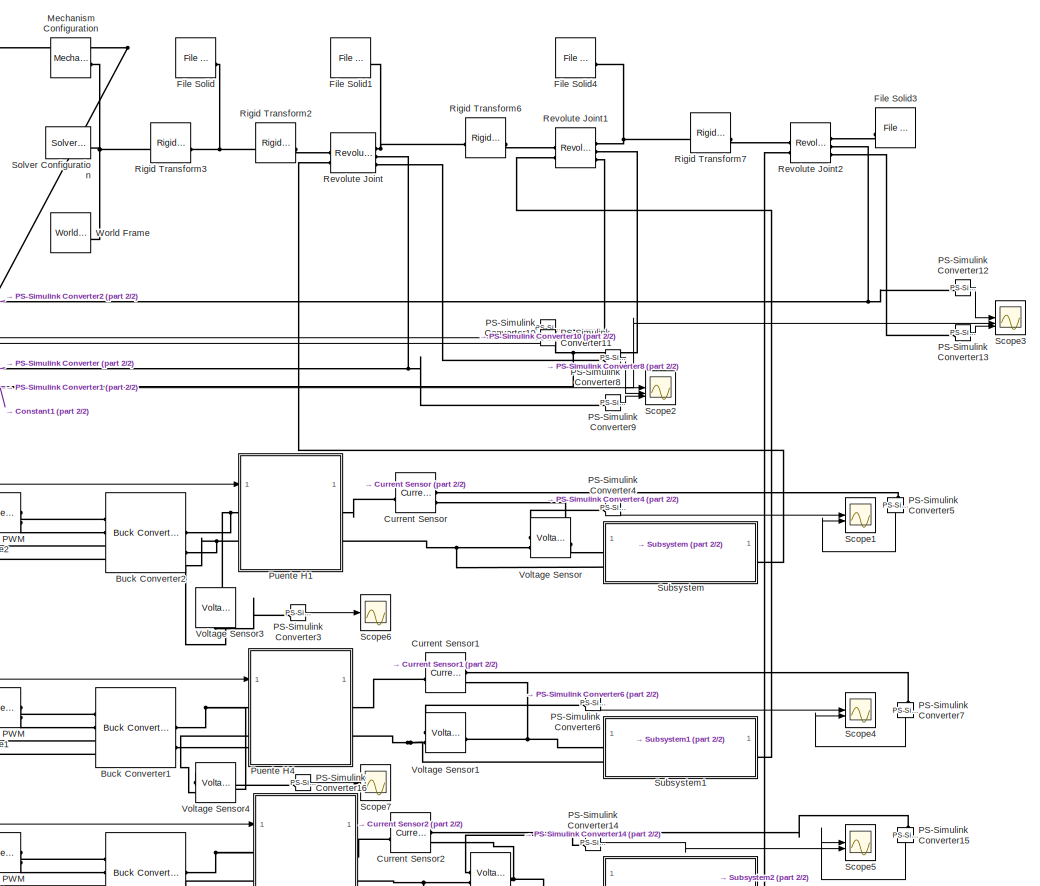
[diagram: root canvas - part 1/2, right side, full height]
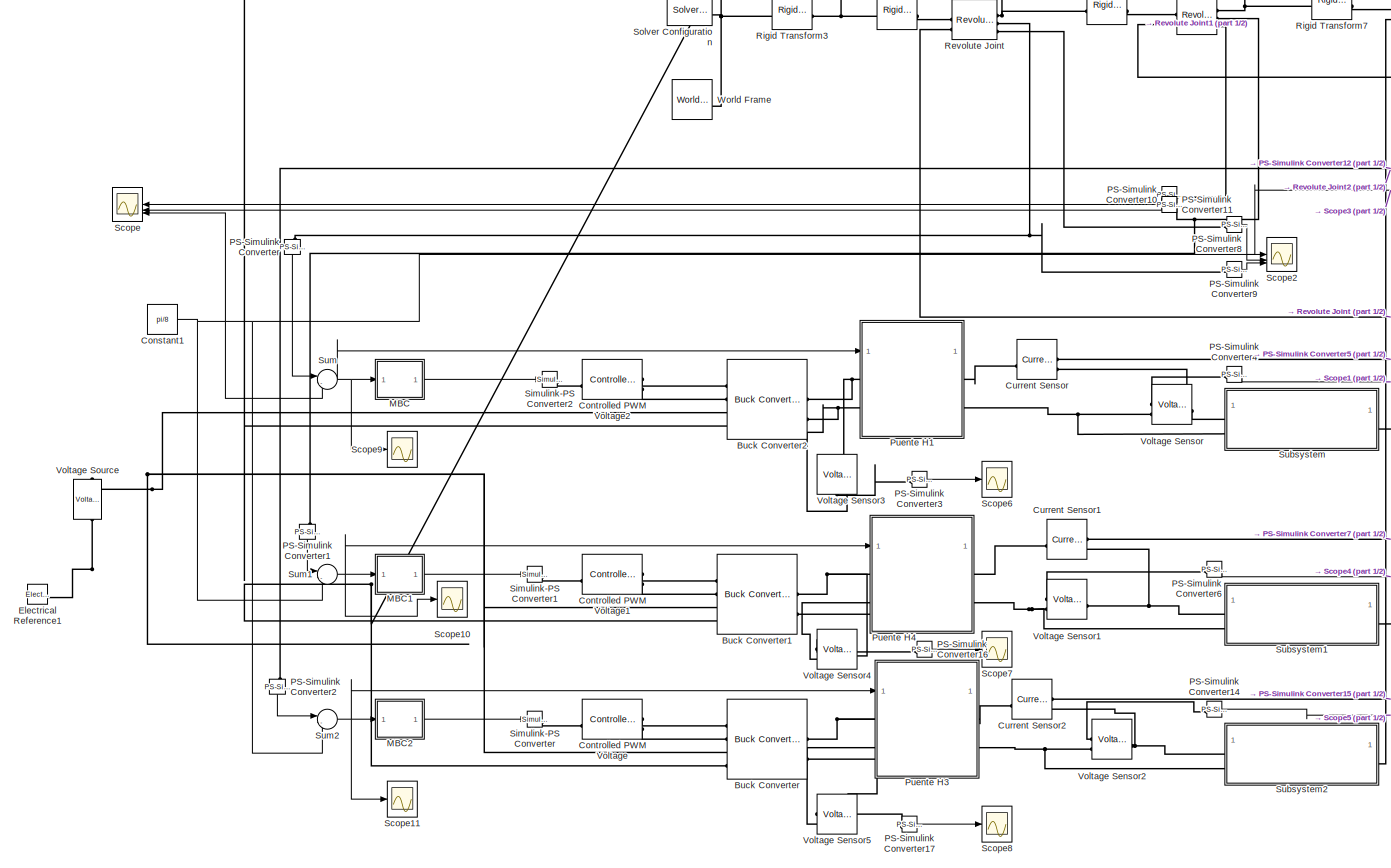
[diagram: root canvas - part 2/2, most of the canvas]
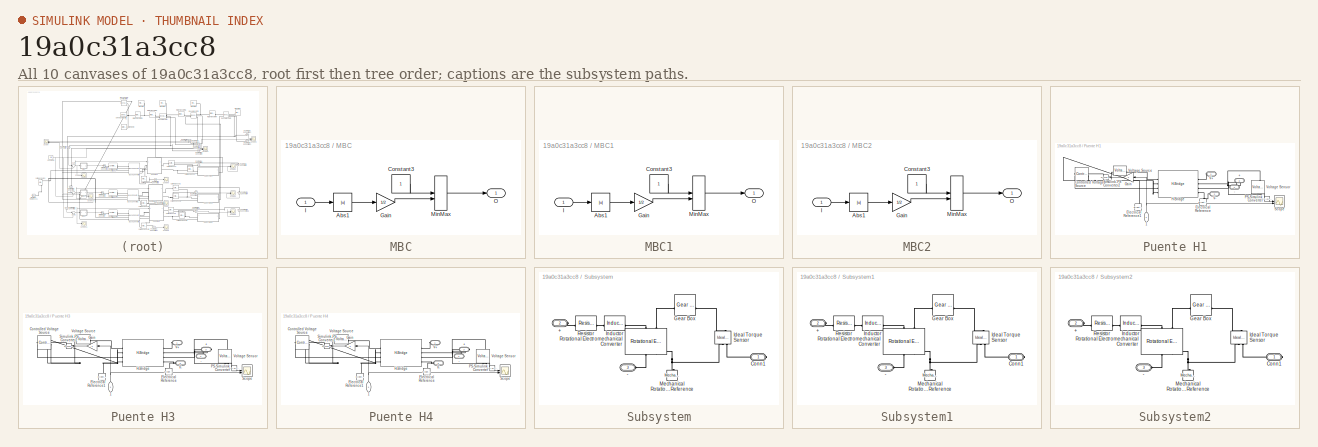
[diagram: thumbnail index - all 10 canvases of the model, root first then tree order]
MODEL slx_19a0c31a3cc8
KIND model
CONFIG AbsTol = auto
CONFIG EnableMultiTasking = off
CONFIG FixedStep = auto
CONFIG MaxStep = auto
CONFIG MinStep = .001
CONFIG RelTol = 1e-3
CONFIG SampleTimeConstraint = Unconstrained
CONFIG SolverName = VariableStepAuto
CONFIG StartTime = 0.0
CONFIG StopTime = 5
BLOCK [Reference] Buck Converter  REF=ee_lib/Semiconductors &
Converters/Converters/Buck Converter
  SourceBlock = ee_lib/Semiconductors &\nConverters/Converters/Buck Converter
  SourceType = Buck Converter
BLOCK [Reference] Buck Converter1  REF=ee_lib/Semiconductors &
Converters/Converters/Buck Converter
  SourceBlock = ee_lib/Semiconductors &\nConverters/Converters/Buck Converter
  SourceType = Buck Converter
BLOCK [Reference] Buck Converter2  REF=ee_lib/Semiconductors &
Converters/Converters/Buck Converter
  SourceBlock = ee_lib/Semiconductors &\nConverters/Converters/Buck Converter
  SourceType = Buck Converter
BLOCK [Constant] Constant1
  Value = pi/8
BLOCK [Reference] Controlled PWM Voltage  REF=ee_lib/Integrated Circuits/Controlled PWM
Voltage
  SourceBlock = ee_lib/Integrated Circuits/Controlled PWM\nVoltage
  SourceType = Controlled PWM\nVoltage
BLOCK [Reference] Controlled PWM Voltage1  REF=ee_lib/Integrated Circuits/Controlled PWM
Voltage
  SourceBlock = ee_lib/Integrated Circuits/Controlled PWM\nVoltage
  SourceType = Controlled PWM\nVoltage
BLOCK [Reference] Controlled PWM Voltage2  REF=ee_lib/Integrated Circuits/Controlled PWM
Voltage
  SourceBlock = ee_lib/Integrated Circuits/Controlled PWM\nVoltage
  SourceType = Controlled PWM\nVoltage
BLOCK [Reference] Current Sensor  REF=fl_lib/Electrical/Electrical Sensors/Current Sensor
  SourceBlock = fl_lib/Electrical/Electrical Sensors/Current Sensor
  SourceType = Current Sensor
BLOCK [Reference] Current Sensor1  REF=fl_lib/Electrical/Electrical Sensors/Current Sensor
  SourceBlock = fl_lib/Electrical/Electrical Sensors/Current Sensor
  SourceType = Current Sensor
BLOCK [Reference] Current Sensor2  REF=fl_lib/Electrical/Electrical Sensors/Current Sensor
  SourceBlock = fl_lib/Electrical/Electrical Sensors/Current Sensor
  SourceType = Current Sensor
BLOCK [Reference] Electrical Reference1  REF=fl_lib/Electrical/Electrical Elements/Electrical Reference
  SourceBlock = fl_lib/Electrical/Electrical Elements/Electrical Reference
  SourceType = Electrical Reference
BLOCK [Reference] File Solid  REF=sm_lib/Body Elements/File Solid
  SourceBlock = sm_lib/Body Elements/File Solid
  SourceType = File Solid
BLOCK [Reference] File Solid1  REF=sm_lib/Body Elements/File Solid
  SourceBlock = sm_lib/Body Elements/File Solid
  SourceType = File Solid
BLOCK [Reference] File Solid3  REF=sm_lib/Body Elements/File Solid
  NameLocation = top
  SourceBlock = sm_lib/Body Elements/File Solid
  SourceType = File Solid
BLOCK [Reference] File Solid4  REF=sm_lib/Body Elements/File Solid
  SourceBlock = sm_lib/Body Elements/File Solid
  SourceType = File Solid
BLOCK [SubSystem] MBC
BLOCK [Abs] MBC/Abs1
  SaturateOnIntegerOverflow = off
BLOCK [Constant] MBC/Constant3
BLOCK [Gain] MBC/Gain
  Gain = 1/2
BLOCK [Inport] MBC/I
  NameLocation = top
BLOCK [MinMax] MBC/MinMax
  Inputs = 2
BLOCK [Outport] MBC/O
BLOCK [SubSystem] MBC1
BLOCK [Abs] MBC1/Abs1
  SaturateOnIntegerOverflow = off
BLOCK [Constant] MBC1/Constant3
BLOCK [Gain] MBC1/Gain
  Gain = 1/2
BLOCK [Inport] MBC1/I
  NameLocation = top
BLOCK [MinMax] MBC1/MinMax
  Inputs = 2
BLOCK [Outport] MBC1/O
BLOCK [SubSystem] MBC2
BLOCK [Abs] MBC2/Abs1
  SaturateOnIntegerOverflow = off
BLOCK [Constant] MBC2/Constant3
BLOCK [Gain] MBC2/Gain
  Gain = 1/2
BLOCK [Inport] MBC2/I
  NameLocation = top
BLOCK [MinMax] MBC2/MinMax
  Inputs = 2
BLOCK [Outport] MBC2/O
BLOCK [Reference] Mechanism Configuration  REF=sm_lib/Utilities/Mechanism
Configuration
  SourceBlock = sm_lib/Utilities/Mechanism\nConfiguration
  SourceType = Mechanism\nConfiguration
BLOCK [Reference] PS-Simulink Converter  REF=nesl_utility/PS-Simulink
Converter
  NameLocation = left
  SourceBlock = nesl_utility/PS-Simulink\nConverter
  SourceType = PS-Simulink\nConverter
BLOCK [Reference] PS-Simulink Converter1  REF=nesl_utility/PS-Simulink
Converter
  NameLocation = left
  SourceBlock = nesl_utility/PS-Simulink\nConverter
  SourceType = PS-Simulink\nConverter
BLOCK [Reference] PS-Simulink Converter10  REF=nesl_utility/PS-Simulink
Converter
  NameLocation = top
  SourceBlock = nesl_utility/PS-Simulink\nConverter
  SourceType = PS-Simulink\nConverter
BLOCK [Reference] PS-Simulink Converter11  REF=nesl_utility/PS-Simulink
Converter
  NameLocation = top
  SourceBlock = nesl_utility/PS-Simulink\nConverter
  SourceType = PS-Simulink\nConverter
BLOCK [Reference] PS-Simulink Converter12  REF=nesl_utility/PS-Simulink
Converter
  SourceBlock = nesl_utility/PS-Simulink\nConverter
  SourceType = PS-Simulink\nConverter
BLOCK [Reference] PS-Simulink Converter13  REF=nesl_utility/PS-Simulink
Converter
  SourceBlock = nesl_utility/PS-Simulink\nConverter
  SourceType = PS-Simulink\nConverter
BLOCK [Reference] PS-Simulink Converter14  REF=nesl_utility/PS-Simulink
Converter
  SourceBlock = nesl_utility/PS-Simulink\nConverter
  SourceType = PS-Simulink\nConverter
BLOCK [Reference] PS-Simulink Converter15  REF=nesl_utility/PS-Simulink
Converter
  NameLocation = left
  SourceBlock = nesl_utility/PS-Simulink\nConverter
  SourceType = PS-Simulink\nConverter
BLOCK [Reference] PS-Simulink Converter16  REF=nesl_utility/PS-Simulink
Converter
  SourceBlock = nesl_utility/PS-Simulink\nConverter
  SourceType = PS-Simulink\nConverter
BLOCK [Reference] PS-Simulink Converter17  REF=nesl_utility/PS-Simulink
Converter
  SourceBlock = nesl_utility/PS-Simulink\nConverter
  SourceType = PS-Simulink\nConverter
BLOCK [Reference] PS-Simulink Converter2  REF=nesl_utility/PS-Simulink
Converter
  NameLocation = left
  SourceBlock = nesl_utility/PS-Simulink\nConverter
  SourceType = PS-Simulink\nConverter
BLOCK [Reference] PS-Simulink Converter3  REF=nesl_utility/PS-Simulink
Converter
  SourceBlock = nesl_utility/PS-Simulink\nConverter
  SourceType = PS-Simulink\nConverter
BLOCK [Reference] PS-Simulink Converter4  REF=nesl_utility/PS-Simulink
Converter
  SourceBlock = nesl_utility/PS-Simulink\nConverter
  SourceType = PS-Simulink\nConverter
BLOCK [Reference] PS-Simulink Converter5  REF=nesl_utility/PS-Simulink
Converter
  NameLocation = left
  SourceBlock = nesl_utility/PS-Simulink\nConverter
  SourceType = PS-Simulink\nConverter
BLOCK [Reference] PS-Simulink Converter6  REF=nesl_utility/PS-Simulink
Converter
  SourceBlock = nesl_utility/PS-Simulink\nConverter
  SourceType = PS-Simulink\nConverter
BLOCK [Reference] PS-Simulink Converter7  REF=nesl_utility/PS-Simulink
Converter
  NameLocation = left
  SourceBlock = nesl_utility/PS-Simulink\nConverter
  SourceType = PS-Simulink\nConverter
BLOCK [Reference] PS-Simulink Converter8  REF=nesl_utility/PS-Simulink
Converter
  SourceBlock = nesl_utility/PS-Simulink\nConverter
  SourceType = PS-Simulink\nConverter
BLOCK [Reference] PS-Simulink Converter9  REF=nesl_utility/PS-Simulink
Converter
  SourceBlock = nesl_utility/PS-Simulink\nConverter
  SourceType = PS-Simulink\nConverter
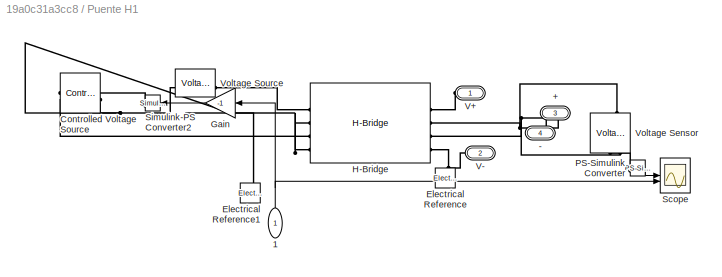
BLOCK [SubSystem] Puente H1
  NameLocation = right
BLOCK [PMIOPort] Puente H1/+
  NameLocation = top
  Port = 3
  Side = Right
BLOCK [PMIOPort] Puente H1/-
  NameLocation = top
  Port = 4
  Side = Right
BLOCK [Inport] Puente H1/1
  NameLocation = right
BLOCK [Reference] Puente H1/Controlled Voltage Source  REF=fl_lib/Electrical/Electrical Sources/Controlled Voltage
Source
  NameLocation = top
  SourceBlock = fl_lib/Electrical/Electrical Sources/Controlled Voltage\nSource
  SourceType = Controlled Voltage\nSource
BLOCK [Reference] Puente H1/Electrical Reference  REF=fl_lib/Electrical/Electrical Elements/Electrical Reference
  NameLocation = right
  SourceBlock = fl_lib/Electrical/Electrical Elements/Electrical Reference
  SourceType = Electrical Reference
BLOCK [Reference] Puente H1/Electrical Reference1  REF=fl_lib/Electrical/Electrical Elements/Electrical Reference
  NameLocation = right
  SourceBlock = fl_lib/Electrical/Electrical Elements/Electrical Reference
  SourceType = Electrical Reference
BLOCK [Gain] Puente H1/Gain
  Gain = -1
  NameLocation = top
BLOCK [Reference] Puente H1/H-Bridge  REF=ee_lib/Semiconductors &
Converters/Converters/H-Bridge
  SourceBlock = ee_lib/Semiconductors &\nConverters/Converters/H-Bridge
  SourceType = H-Bridge
BLOCK [Reference] Puente H1/PS-Simulink Converter  REF=nesl_utility/PS-Simulink
Converter
  SourceBlock = nesl_utility/PS-Simulink\nConverter
  SourceType = PS-Simulink\nConverter
BLOCK [Scope] Puente H1/Scope
  Floating = off
  NumInputPorts = 2
  ScopeSpecificationString = Simulink.scopes.TimeScopeBlockCfg('CurrentConfiguration', extmgr.ConfigurationSet(extmgr.Configuration('Core','General UI',true),extmgr.Configuration('Core','Source UI',true),extmgr.Configuration('Sources','WiredSimulink',true,'DataLoggingVariableName','ScopeData3'),extmgr.Configuration('Visuals','Time Domain',true,'SerializedDisplays',{struct('MinYLimReal','-0.92058','MaxYLimReal','1.56264','YLab...<+1547ch>  <repeated x3 — deduplicated; at blocks: Scope>
BLOCK [Reference] Puente H1/Simulink-PS Converter2  REF=nesl_utility/Simulink-PS
Converter
  NameLocation = top
  SourceBlock = nesl_utility/Simulink-PS\nConverter
  SourceType = Simulink-PS\nConverter
BLOCK [PMIOPort] Puente H1/V+
  NameLocation = top
  Side = Left
BLOCK [PMIOPort] Puente H1/V-
  NameLocation = top
  Port = 2
  Side = Left
BLOCK [Reference] Puente H1/Voltage Sensor  REF=fl_lib/Electrical/Electrical Sensors/Voltage Sensor
  NameLocation = right
  SourceBlock = fl_lib/Electrical/Electrical Sensors/Voltage Sensor
  SourceType = Voltage Sensor
BLOCK [Reference] Puente H1/Voltage Source  REF=ee_lib/Sources/Voltage Source
  SourceBlock = ee_lib/Sources/Voltage Source
  SourceType = Voltage Source
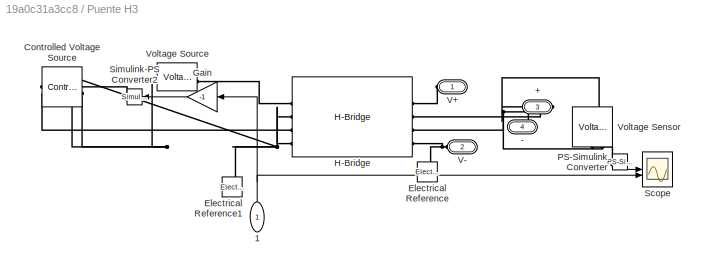
BLOCK [SubSystem] Puente H3
  NameLocation = right
BLOCK [PMIOPort] Puente H3/+
  NameLocation = top
  Port = 3
  Side = Right
BLOCK [PMIOPort] Puente H3/-
  NameLocation = top
  Port = 4
  Side = Right
BLOCK [Inport] Puente H3/1
  NameLocation = right
BLOCK [Reference] Puente H3/Controlled Voltage Source  REF=fl_lib/Electrical/Electrical Sources/Controlled Voltage
Source
  NameLocation = top
  SourceBlock = fl_lib/Electrical/Electrical Sources/Controlled Voltage\nSource
  SourceType = Controlled Voltage\nSource
BLOCK [Reference] Puente H3/Electrical Reference  REF=fl_lib/Electrical/Electrical Elements/Electrical Reference
  NameLocation = right
  SourceBlock = fl_lib/Electrical/Electrical Elements/Electrical Reference
  SourceType = Electrical Reference
BLOCK [Reference] Puente H3/Electrical Reference1  REF=fl_lib/Electrical/Electrical Elements/Electrical Reference
  NameLocation = right
  SourceBlock = fl_lib/Electrical/Electrical Elements/Electrical Reference
  SourceType = Electrical Reference
BLOCK [Gain] Puente H3/Gain
  Gain = -1
  NameLocation = top
BLOCK [Reference] Puente H3/H-Bridge  REF=ee_lib/Semiconductors &
Converters/Converters/H-Bridge
  SourceBlock = ee_lib/Semiconductors &\nConverters/Converters/H-Bridge
  SourceType = H-Bridge
BLOCK [Reference] Puente H3/PS-Simulink Converter  REF=nesl_utility/PS-Simulink
Converter
  SourceBlock = nesl_utility/PS-Simulink\nConverter
  SourceType = PS-Simulink\nConverter
BLOCK [Scope] Puente H3/Scope
  Floating = off
  NumInputPorts = 2
BLOCK [Reference] Puente H3/Simulink-PS Converter2  REF=nesl_utility/Simulink-PS
Converter
  NameLocation = top
  SourceBlock = nesl_utility/Simulink-PS\nConverter
  SourceType = Simulink-PS\nConverter
BLOCK [PMIOPort] Puente H3/V+
  NameLocation = top
  Side = Left
BLOCK [PMIOPort] Puente H3/V-
  NameLocation = top
  Port = 2
  Side = Left
BLOCK [Reference] Puente H3/Voltage Sensor  REF=fl_lib/Electrical/Electrical Sensors/Voltage Sensor
  NameLocation = right
  SourceBlock = fl_lib/Electrical/Electrical Sensors/Voltage Sensor
  SourceType = Voltage Sensor
BLOCK [Reference] Puente H3/Voltage Source  REF=ee_lib/Sources/Voltage Source
  SourceBlock = ee_lib/Sources/Voltage Source
  SourceType = Voltage Source
BLOCK [SubSystem] Puente H4
  NameLocation = right
BLOCK [PMIOPort] Puente H4/+
  NameLocation = top
  Port = 3
  Side = Right
BLOCK [PMIOPort] Puente H4/-
  NameLocation = top
  Port = 4
  Side = Right
BLOCK [Inport] Puente H4/1
  NameLocation = right
BLOCK [Reference] Puente H4/Controlled Voltage Source  REF=fl_lib/Electrical/Electrical Sources/Controlled Voltage
Source
  NameLocation = top
  SourceBlock = fl_lib/Electrical/Electrical Sources/Controlled Voltage\nSource
  SourceType = Controlled Voltage\nSource
BLOCK [Reference] Puente H4/Electrical Reference  REF=fl_lib/Electrical/Electrical Elements/Electrical Reference
  NameLocation = right
  SourceBlock = fl_lib/Electrical/Electrical Elements/Electrical Reference
  SourceType = Electrical Reference
BLOCK [Reference] Puente H4/Electrical Reference1  REF=fl_lib/Electrical/Electrical Elements/Electrical Reference
  NameLocation = right
  SourceBlock = fl_lib/Electrical/Electrical Elements/Electrical Reference
  SourceType = Electrical Reference
BLOCK [Gain] Puente H4/Gain
  Gain = -1
  NameLocation = top
BLOCK [Reference] Puente H4/H-Bridge  REF=ee_lib/Semiconductors &
Converters/Converters/H-Bridge
  SourceBlock = ee_lib/Semiconductors &\nConverters/Converters/H-Bridge
  SourceType = H-Bridge
BLOCK [Reference] Puente H4/PS-Simulink Converter  REF=nesl_utility/PS-Simulink
Converter
  SourceBlock = nesl_utility/PS-Simulink\nConverter
  SourceType = PS-Simulink\nConverter
BLOCK [Scope] Puente H4/Scope
  Floating = off
  NumInputPorts = 2
BLOCK [Reference] Puente H4/Simulink-PS Converter2  REF=nesl_utility/Simulink-PS
Converter
  NameLocation = top
  SourceBlock = nesl_utility/Simulink-PS\nConverter
  SourceType = Simulink-PS\nConverter
BLOCK [PMIOPort] Puente H4/V+
  NameLocation = top
  Side = Left
BLOCK [PMIOPort] Puente H4/V-
  NameLocation = top
  Port = 2
  Side = Left
BLOCK [Reference] Puente H4/Voltage Sensor  REF=fl_lib/Electrical/Electrical Sensors/Voltage Sensor
  NameLocation = right
  SourceBlock = fl_lib/Electrical/Electrical Sensors/Voltage Sensor
  SourceType = Voltage Sensor
BLOCK [Reference] Puente H4/Voltage Source  REF=ee_lib/Sources/Voltage Source
  SourceBlock = ee_lib/Sources/Voltage Source
  SourceType = Voltage Source
BLOCK [Reference] Revolute Joint  REF=sm_lib/Joints/Revolute Joint
  SourceBlock = sm_lib/Joints/Revolute Joint
  SourceType = Revolute Joint
BLOCK [Reference] Revolute Joint1  REF=sm_lib/Joints/Revolute Joint
  SourceBlock = sm_lib/Joints/Revolute Joint
  SourceType = Revolute Joint
BLOCK [Reference] Revolute Joint2  REF=sm_lib/Joints/Revolute Joint
  SourceBlock = sm_lib/Joints/Revolute Joint
  SourceType = Revolute Joint
BLOCK [Reference] Rigid Transform2  REF=sm_lib/Frames and
Transforms/Rigid
Transform
  SourceBlock = sm_lib/Frames and\nTransforms/Rigid\nTransform
  SourceType = Rigid\nTransform
BLOCK [Reference] Rigid Transform3  REF=sm_lib/Frames and
Transforms/Rigid
Transform
  SourceBlock = sm_lib/Frames and\nTransforms/Rigid\nTransform
  SourceType = Rigid\nTransform
BLOCK [Reference] Rigid Transform6  REF=sm_lib/Frames and
Transforms/Rigid
Transform
  SourceBlock = sm_lib/Frames and\nTransforms/Rigid\nTransform
  SourceType = Rigid\nTransform
BLOCK [Reference] Rigid Transform7  REF=sm_lib/Frames and
Transforms/Rigid
Transform
  SourceBlock = sm_lib/Frames and\nTransforms/Rigid\nTransform
  SourceType = Rigid\nTransform
BLOCK [Scope] Scope
  Floating = off
  NameLocation = top
  NumInputPorts = 3
  ScopeSpecificationString = Simulink.scopes.TimeScopeBlockCfg('CurrentConfiguration', extmgr.ConfigurationSet(extmgr.Configuration('Core','General UI',true),extmgr.Configuration('Core','Source UI',true),extmgr.Configuration('Sources','WiredSimulink',true,'DataLoggingVariableName','ScopeData1'),extmgr.Configuration('Visuals','Time Domain',true,'SerializedDisplays',{struct('MinYLimReal','-0.54842','MaxYLimReal','3.07479','YLab...<+1674ch>
BLOCK [Scope] Scope1
  Floating = off
  NumInputPorts = 2
  ScopeSpecificationString = Simulink.scopes.TimeScopeBlockCfg('CurrentConfiguration', extmgr.ConfigurationSet(extmgr.Configuration('Core','General UI',true),extmgr.Configuration('Core','Source UI',true),extmgr.Configuration('Sources','WiredSimulink',true,'DataLoggingVariableName','ScopeData2'),extmgr.Configuration('Visuals','Time Domain',true,'SerializedDisplays',{struct('MinYLimReal','-1.79421','MaxYLimReal','8.95246','YLab...<+1614ch>
BLOCK [Scope] Scope10
  Floating = off
  NumInputPorts = 1
  ScopeSpecificationString = Simulink.scopes.TimeScopeBlockCfg('CurrentConfiguration', extmgr.ConfigurationSet(extmgr.Configuration('Core','General UI',true),extmgr.Configuration('Core','Source UI',true),extmgr.Configuration('Sources','WiredSimulink',true,'DataLoggingVariableName','ScopeData5'),extmgr.Configuration('Visuals','Time Domain',true,'SerializedDisplays',{struct('MinYLimReal','-1.79421','MaxYLimReal','8.95246','YLab...<+1596ch>
BLOCK [Scope] Scope11
  Floating = off
  NumInputPorts = 1
  ScopeSpecificationString = Simulink.scopes.TimeScopeBlockCfg('CurrentConfiguration', extmgr.ConfigurationSet(extmgr.Configuration('Core','General UI',true),extmgr.Configuration('Core','Source UI',true),extmgr.Configuration('Sources','WiredSimulink',true,'DataLoggingVariableName','ScopeData6'),extmgr.Configuration('Visuals','Time Domain',true,'SerializedDisplays',{struct('MinYLimReal','-1.79421','MaxYLimReal','8.95246','YLab...<+1596ch>
BLOCK [Scope] Scope2
  Floating = off
  NumInputPorts = 3
  ScopeSpecificationString = Simulink.scopes.TimeScopeBlockCfg('CurrentConfiguration', extmgr.ConfigurationSet(extmgr.Configuration('Core','General UI',true),extmgr.Configuration('Core','Source UI',true),extmgr.Configuration('Sources','WiredSimulink',true,'DataLoggingVariableName','ScopeData3'),extmgr.Configuration('Visuals','Time Domain',true,'SerializedDisplays',{struct('MinYLimReal','-6.05081','MaxYLimReal','4.69042','YLab...<+1674ch>
BLOCK [Scope] Scope3
  Floating = off
  NumInputPorts = 3
  ScopeSpecificationString = Simulink.scopes.TimeScopeBlockCfg('CurrentConfiguration', extmgr.ConfigurationSet(extmgr.Configuration('Core','General UI',true),extmgr.Configuration('Core','Source UI',true),extmgr.Configuration('Sources','WiredSimulink',true,'DataLoggingVariableName','ScopeData4'),extmgr.Configuration('Visuals','Time Domain',true,'SerializedDisplays',{struct('MinYLimReal','-4.02961','MaxYLimReal','15.93895','YLa...<+1680ch>
BLOCK [Scope] Scope4
  Floating = off
  NumInputPorts = 2
  ScopeSpecificationString = Simulink.scopes.TimeScopeBlockCfg('CurrentConfiguration', extmgr.ConfigurationSet(extmgr.Configuration('Core','General UI',true),extmgr.Configuration('Core','Source UI',true),extmgr.Configuration('Sources','WiredSimulink',true,'DataLoggingVariableName','ScopeData5'),extmgr.Configuration('Visuals','Time Domain',true,'SerializedDisplays',{struct('MinYLimReal','-32.66286','MaxYLimReal','6.23689','YLa...<+1571ch>
BLOCK [Scope] Scope5
  Floating = off
  NumInputPorts = 2
  ScopeSpecificationString = Simulink.scopes.TimeScopeBlockCfg('CurrentConfiguration', extmgr.ConfigurationSet(extmgr.Configuration('Core','General UI',true),extmgr.Configuration('Core','Source UI',true),extmgr.Configuration('Sources','WiredSimulink',true,'DataLoggingVariableName','ScopeData6'),extmgr.Configuration('Visuals','Time Domain',true,'SerializedDisplays',{struct('MinYLimReal','-33.47664','MaxYLimReal','69.39333','YL...<+1670ch>
BLOCK [Scope] Scope6
  Floating = off
  NumInputPorts = 1
  ScopeSpecificationString = Simulink.scopes.TimeScopeBlockCfg('CurrentConfiguration', extmgr.ConfigurationSet(extmgr.Configuration('Core','General UI',true),extmgr.Configuration('Core','Source UI',true),extmgr.Configuration('Sources','WiredSimulink',true,'DataLoggingVariableName','ScopeData1'),extmgr.Configuration('Visuals','Time Domain',true,'SerializedDisplays',{struct('MinYLimReal','-12.95118','MaxYLimReal','98.44404','YL...<+1620ch>
BLOCK [Scope] Scope7
  Floating = off
  NumInputPorts = 1
  ScopeSpecificationString = Simulink.scopes.TimeScopeBlockCfg('CurrentConfiguration', extmgr.ConfigurationSet(extmgr.Configuration('Core','General UI',true),extmgr.Configuration('Core','Source UI',true),extmgr.Configuration('Sources','WiredSimulink',true,'DataLoggingVariableName','ScopeData2'),extmgr.Configuration('Visuals','Time Domain',true,'SerializedDisplays',{struct('MinYLimReal','-40.29829','MaxYLimReal','40.99521','YL...<+1620ch>
BLOCK [Scope] Scope8
  Floating = off
  NumInputPorts = 1
  ScopeSpecificationString = Simulink.scopes.TimeScopeBlockCfg('CurrentConfiguration', extmgr.ConfigurationSet(extmgr.Configuration('Core','General UI',true),extmgr.Configuration('Core','Source UI',true),extmgr.Configuration('Sources','WiredSimulink',true,'DataLoggingVariableName','ScopeData3'),extmgr.Configuration('Visuals','Time Domain',true,'SerializedDisplays',{struct('MinYLimReal','-40.29829','MaxYLimReal','40.99521','YL...<+1595ch>
BLOCK [Scope] Scope9
  Floating = off
  NumInputPorts = 1
  ScopeSpecificationString = Simulink.scopes.TimeScopeBlockCfg('CurrentConfiguration', extmgr.ConfigurationSet(extmgr.Configuration('Core','General UI',true),extmgr.Configuration('Core','Source UI',true),extmgr.Configuration('Sources','WiredSimulink',true,'DataLoggingVariableName','ScopeData4'),extmgr.Configuration('Visuals','Time Domain',true,'SerializedDisplays',{struct('MinYLimReal','-1.79421','MaxYLimReal','8.95246','YLab...<+1596ch>
BLOCK [Reference] Simulink-PS Converter  REF=nesl_utility/Simulink-PS
Converter
  SourceBlock = nesl_utility/Simulink-PS\nConverter
  SourceType = Simulink-PS\nConverter
BLOCK [Reference] Simulink-PS Converter1  REF=nesl_utility/Simulink-PS
Converter
  SourceBlock = nesl_utility/Simulink-PS\nConverter
  SourceType = Simulink-PS\nConverter
BLOCK [Reference] Simulink-PS Converter2  REF=nesl_utility/Simulink-PS
Converter
  SourceBlock = nesl_utility/Simulink-PS\nConverter
  SourceType = Simulink-PS\nConverter
BLOCK [Reference] Solver Configuration  REF=nesl_utility/Solver
Configuration
  SourceBlock = nesl_utility/Solver\nConfiguration
  SourceType = Solver\nConfiguration
BLOCK [SubSystem] Subsystem
BLOCK [PMIOPort] Subsystem/+
  NameLocation = top
  Port = 2
  Side = Left
BLOCK [PMIOPort] Subsystem/-
  NameLocation = top
  Port = 3
  Side = Left
BLOCK [PMIOPort] Subsystem/Conn1
  Side = Right
BLOCK [Reference] Subsystem/Gear Box  REF=fl_lib/Mechanical/Mechanisms/Gear Box
  SourceBlock = fl_lib/Mechanical/Mechanisms/Gear Box
  SourceType = Gear Box
BLOCK [Reference] Subsystem/Ideal Torque Sensor  REF=fl_lib/Mechanical/Mechanical Sensors/Ideal Torque Sensor
  NameLocation = left
  SourceBlock = fl_lib/Mechanical/Mechanical Sensors/Ideal Torque Sensor
  SourceType = Ideal Torque Sensor
BLOCK [Reference] Subsystem/Inductor  REF=fl_lib/Electrical/Electrical Elements/Inductor
  SourceBlock = fl_lib/Electrical/Electrical Elements/Inductor
  SourceType = Inductor
BLOCK [Reference] Subsystem/Mechanical Rotational Reference  REF=fl_lib/Mechanical/Rotational Elements/Mechanical
Rotational Reference
  NameLocation = right
  SourceBlock = fl_lib/Mechanical/Rotational Elements/Mechanical\nRotational Reference
  SourceType = Mechanical\nRotational Reference
BLOCK [Reference] Subsystem/Resistor  REF=fl_lib/Electrical/Electrical Elements/Resistor
  SourceBlock = fl_lib/Electrical/Electrical Elements/Resistor
  SourceType = Resistor
BLOCK [Reference] Subsystem/Rotational Electromechanical Converter  REF=fl_lib/Electrical/Electrical Elements/Rotational
Electromechanical
Converter
  NameLocation = right
  SourceBlock = fl_lib/Electrical/Electrical Elements/Rotational\nElectromechanical\nConverter
  SourceType = Rotational\nElectromechanical\nConverter
BLOCK [SubSystem] Subsystem1
BLOCK [PMIOPort] Subsystem1/+
  NameLocation = top
  Port = 2
  Side = Left
BLOCK [PMIOPort] Subsystem1/-
  NameLocation = top
  Port = 3
  Side = Left
BLOCK [PMIOPort] Subsystem1/Conn1
  Side = Right
BLOCK [Reference] Subsystem1/Gear Box  REF=fl_lib/Mechanical/Mechanisms/Gear Box
  SourceBlock = fl_lib/Mechanical/Mechanisms/Gear Box
  SourceType = Gear Box
BLOCK [Reference] Subsystem1/Ideal Torque Sensor  REF=fl_lib/Mechanical/Mechanical Sensors/Ideal Torque Sensor
  NameLocation = left
  SourceBlock = fl_lib/Mechanical/Mechanical Sensors/Ideal Torque Sensor
  SourceType = Ideal Torque Sensor
BLOCK [Reference] Subsystem1/Inductor  REF=fl_lib/Electrical/Electrical Elements/Inductor
  SourceBlock = fl_lib/Electrical/Electrical Elements/Inductor
  SourceType = Inductor
BLOCK [Reference] Subsystem1/Mechanical Rotational Reference  REF=fl_lib/Mechanical/Rotational Elements/Mechanical
Rotational Reference
  NameLocation = right
  SourceBlock = fl_lib/Mechanical/Rotational Elements/Mechanical\nRotational Reference
  SourceType = Mechanical\nRotational Reference
BLOCK [Reference] Subsystem1/Resistor  REF=fl_lib/Electrical/Electrical Elements/Resistor
  SourceBlock = fl_lib/Electrical/Electrical Elements/Resistor
  SourceType = Resistor
BLOCK [Reference] Subsystem1/Rotational Electromechanical Converter  REF=fl_lib/Electrical/Electrical Elements/Rotational
Electromechanical
Converter
  NameLocation = right
  SourceBlock = fl_lib/Electrical/Electrical Elements/Rotational\nElectromechanical\nConverter
  SourceType = Rotational\nElectromechanical\nConverter
BLOCK [SubSystem] Subsystem2
BLOCK [PMIOPort] Subsystem2/+
  NameLocation = top
  Port = 2
  Side = Left
BLOCK [PMIOPort] Subsystem2/-
  NameLocation = top
  Port = 3
  Side = Left
BLOCK [PMIOPort] Subsystem2/Conn1
  Side = Right
BLOCK [Reference] Subsystem2/Gear Box  REF=fl_lib/Mechanical/Mechanisms/Gear Box
  SourceBlock = fl_lib/Mechanical/Mechanisms/Gear Box
  SourceType = Gear Box
BLOCK [Reference] Subsystem2/Ideal Torque Sensor  REF=fl_lib/Mechanical/Mechanical Sensors/Ideal Torque Sensor
  NameLocation = left
  SourceBlock = fl_lib/Mechanical/Mechanical Sensors/Ideal Torque Sensor
  SourceType = Ideal Torque Sensor
BLOCK [Reference] Subsystem2/Inductor  REF=fl_lib/Electrical/Electrical Elements/Inductor
  SourceBlock = fl_lib/Electrical/Electrical Elements/Inductor
  SourceType = Inductor
BLOCK [Reference] Subsystem2/Mechanical Rotational Reference  REF=fl_lib/Mechanical/Rotational Elements/Mechanical
Rotational Reference
  NameLocation = right
  SourceBlock = fl_lib/Mechanical/Rotational Elements/Mechanical\nRotational Reference
  SourceType = Mechanical\nRotational Reference
BLOCK [Reference] Subsystem2/Resistor  REF=fl_lib/Electrical/Electrical Elements/Resistor
  SourceBlock = fl_lib/Electrical/Electrical Elements/Resistor
  SourceType = Resistor
BLOCK [Reference] Subsystem2/Rotational Electromechanical Converter  REF=fl_lib/Electrical/Electrical Elements/Rotational
Electromechanical
Converter
  NameLocation = right
  SourceBlock = fl_lib/Electrical/Electrical Elements/Rotational\nElectromechanical\nConverter
  SourceType = Rotational\nElectromechanical\nConverter
BLOCK [Sum] Sum
  Inputs = |-+
  NameLocation = top
BLOCK [Sum] Sum1
  Inputs = |-+
  NameLocation = top
BLOCK [Sum] Sum2
  Inputs = |-+
  NameLocation = top
BLOCK [Reference] Voltage Sensor  REF=fl_lib/Electrical/Electrical Sensors/Voltage Sensor
  SourceBlock = fl_lib/Electrical/Electrical Sensors/Voltage Sensor
  SourceType = Voltage Sensor
BLOCK [Reference] Voltage Sensor1  REF=fl_lib/Electrical/Electrical Sensors/Voltage Sensor
  SourceBlock = fl_lib/Electrical/Electrical Sensors/Voltage Sensor
  SourceType = Voltage Sensor
BLOCK [Reference] Voltage Sensor2  REF=fl_lib/Electrical/Electrical Sensors/Voltage Sensor
  SourceBlock = fl_lib/Electrical/Electrical Sensors/Voltage Sensor
  SourceType = Voltage Sensor
BLOCK [Reference] Voltage Sensor3  REF=fl_lib/Electrical/Electrical Sensors/Voltage Sensor
  NameLocation = right
  SourceBlock = fl_lib/Electrical/Electrical Sensors/Voltage Sensor
  SourceType = Voltage Sensor
BLOCK [Reference] Voltage Sensor4  REF=fl_lib/Electrical/Electrical Sensors/Voltage Sensor
  NameLocation = top
  SourceBlock = fl_lib/Electrical/Electrical Sensors/Voltage Sensor
  SourceType = Voltage Sensor
BLOCK [Reference] Voltage Sensor5  REF=fl_lib/Electrical/Electrical Sensors/Voltage Sensor
  NameLocation = top
  SourceBlock = fl_lib/Electrical/Electrical Sensors/Voltage Sensor
  SourceType = Voltage Sensor
BLOCK [Reference] Voltage Source  REF=ee_lib/Sources/Voltage Source
  NameLocation = right
  SourceBlock = ee_lib/Sources/Voltage Source
  SourceType = Voltage Source
BLOCK [Reference] World Frame  REF=sm_lib/Frames and
Transforms/World Frame
  SourceBlock = sm_lib/Frames and\nTransforms/World Frame
  SourceType = World Frame
NET Constant1:1 -> Scope2:2, Scope3:2, Scope:3, Sum1:2, Sum2:2, Sum:2
LINE MBC/Abs1:1 -> MBC/Gain:1
LINE MBC/Constant3:1 -> MBC/MinMax:1
LINE MBC/Gain:1 -> MBC/MinMax:2
LINE MBC/I:1 -> MBC/Abs1:1
LINE MBC/MinMax:1 -> MBC/O:1
LINE MBC1/Abs1:1 -> MBC1/Gain:1
LINE MBC1/Constant3:1 -> MBC1/MinMax:1
LINE MBC1/Gain:1 -> MBC1/MinMax:2
LINE MBC1/I:1 -> MBC1/Abs1:1
LINE MBC1/MinMax:1 -> MBC1/O:1
LINE MBC1:1 -> Simulink-PS Converter1:1
LINE MBC2/Abs1:1 -> MBC2/Gain:1
LINE MBC2/Constant3:1 -> MBC2/MinMax:1
LINE MBC2/Gain:1 -> MBC2/MinMax:2
LINE MBC2/I:1 -> MBC2/Abs1:1
LINE MBC2/MinMax:1 -> MBC2/O:1
LINE MBC2:1 -> Simulink-PS Converter:1
LINE MBC:1 -> Simulink-PS Converter2:1
LINE PS-Simulink Converter10:1 -> Scope:1
LINE PS-Simulink Converter11:1 -> Scope:2
LINE PS-Simulink Converter12:1 -> Scope3:1
LINE PS-Simulink Converter13:1 -> Scope3:3
LINE PS-Simulink Converter14:1 -> Scope5:2
LINE PS-Simulink Converter15:1 -> Scope5:1
LINE PS-Simulink Converter16:1 -> Scope7:1
LINE PS-Simulink Converter17:1 -> Scope8:1
LINE PS-Simulink Converter1:1 -> Sum1:1
LINE PS-Simulink Converter2:1 -> Sum2:1
LINE PS-Simulink Converter3:1 -> Scope6:1
LINE PS-Simulink Converter4:1 -> Scope1:1
LINE PS-Simulink Converter5:1 -> Scope1:2
LINE PS-Simulink Converter6:1 -> Scope4:1
LINE PS-Simulink Converter7:1 -> Scope4:2
LINE PS-Simulink Converter8:1 -> Scope2:1
LINE PS-Simulink Converter9:1 -> Scope2:3
LINE PS-Simulink Converter:1 -> Sum:1
NET Puente H1/1:1 -> Puente H1/Gain:1, Puente H1/Scope:2
LINE Puente H1/Gain:1 -> Puente H1/Simulink-PS Converter2:1
LINE Puente H1/PS-Simulink Converter:1 -> Puente H1/Scope:1
NET Puente H3/1:1 -> Puente H3/Gain:1, Puente H3/Scope:2
LINE Puente H3/Gain:1 -> Puente H3/Simulink-PS Converter2:1
LINE Puente H3/PS-Simulink Converter:1 -> Puente H3/Scope:1
NET Puente H4/1:1 -> Puente H4/Gain:1, Puente H4/Scope:2
LINE Puente H4/Gain:1 -> Puente H4/Simulink-PS Converter2:1
LINE Puente H4/PS-Simulink Converter:1 -> Puente H4/Scope:1
NET Sum1:1 -> MBC1:1, Puente H4:1, Scope10:1
NET Sum2:1 -> MBC2:1, Puente H3:1, Scope11:1
NET Sum:1 -> MBC:1, Puente H1:1, Scope9:1
PLINE Buck Converter1:LConn1 -- Controlled PWM Voltage1:RConn1
PLINE Buck Converter1:LConn2 -- Controlled PWM Voltage1:RConn2
PNET net1: Buck Converter1:LConn3 -- Buck Converter2:LConn3 -- Buck Converter:LConn3 -- Voltage Source:LConn1
PNET net2: Buck Converter1:LConn4 -- Buck Converter2:LConn4 -- Buck Converter:LConn4 -- Electrical Reference1:LConn1 -- Voltage Source:RConn1
PNET net3: Buck Converter1:RConn1 -- Puente H4:LConn1 -- Voltage Sensor4:LConn1
PNET net4: Buck Converter1:RConn2 -- Puente H4:LConn2 -- Voltage Sensor4:RConn2
PLINE Buck Converter2:LConn1 -- Controlled PWM Voltage2:RConn1
PLINE Buck Converter2:LConn2 -- Controlled PWM Voltage2:RConn2
PNET net5: Buck Converter2:RConn1 -- Puente H1:LConn1 -- Voltage Sensor3:LConn1
PNET net6: Buck Converter2:RConn2 -- Puente H1:LConn2 -- Voltage Sensor3:RConn2
PLINE Buck Converter:LConn1 -- Controlled PWM Voltage:RConn1
PLINE Buck Converter:LConn2 -- Controlled PWM Voltage:RConn2
PNET net7: Buck Converter:RConn1 -- Puente H3:LConn1 -- Voltage Sensor5:LConn1
PNET net8: Buck Converter:RConn2 -- Puente H3:LConn2 -- Voltage Sensor5:RConn2
PLINE Controlled PWM Voltage1:LConn1 -- Simulink-PS Converter1:RConn1
PLINE Controlled PWM Voltage2:LConn1 -- Simulink-PS Converter2:RConn1
PLINE Controlled PWM Voltage:LConn1 -- Simulink-PS Converter:RConn1
PLINE Current Sensor1:LConn1 -- Puente H4:RConn1
PLINE Current Sensor1:RConn1 -- PS-Simulink Converter7:LConn1
PNET net9: Current Sensor1:RConn2 -- Subsystem1:LConn1 -- Voltage Sensor1:LConn1
PLINE Current Sensor2:LConn1 -- Puente H3:RConn1
PLINE Current Sensor2:RConn1 -- PS-Simulink Converter15:LConn1
PNET net10: Current Sensor2:RConn2 -- Subsystem2:LConn1 -- Voltage Sensor2:LConn1
PLINE Current Sensor:LConn1 -- Puente H1:RConn1
PLINE Current Sensor:RConn1 -- PS-Simulink Converter5:LConn1
PNET net11: Current Sensor:RConn2 -- Subsystem:LConn1 -- Voltage Sensor:LConn1
PNET net12: File Solid1:RConn1 -- Revolute Joint:RConn1 -- Rigid Transform6:LConn1
PLINE File Solid3:RConn1 -- Revolute Joint2:RConn1
PNET net13: File Solid4:RConn1 -- Revolute Joint1:RConn1 -- Rigid Transform7:LConn1
PNET net14: File Solid:RConn1 -- Rigid Transform2:LConn1 -- Rigid Transform3:RConn1
PNET net15: Mechanism Configuration:RConn1 -- Rigid Transform3:LConn1 -- Solver Configuration:RConn1 -- World Frame:RConn1
PLINE PS-Simulink Converter10:LConn1 -- Revolute Joint1:RConn3
PNET net16: PS-Simulink Converter11:LConn1 -- PS-Simulink Converter1:LConn1 -- Revolute Joint1:RConn2
PNET net17: PS-Simulink Converter12:LConn1 -- PS-Simulink Converter2:LConn1 -- Revolute Joint2:RConn2
PLINE PS-Simulink Converter13:LConn1 -- Revolute Joint2:RConn3
PLINE PS-Simulink Converter14:LConn1 -- Voltage Sensor2:RConn1
PLINE PS-Simulink Converter16:LConn1 -- Voltage Sensor4:RConn1
PLINE PS-Simulink Converter17:LConn1 -- Voltage Sensor5:RConn1
PLINE PS-Simulink Converter3:LConn1 -- Voltage Sensor3:RConn1
PLINE PS-Simulink Converter4:LConn1 -- Voltage Sensor:RConn1
PLINE PS-Simulink Converter6:LConn1 -- Voltage Sensor1:RConn1
PLINE PS-Simulink Converter8:LConn1 -- Revolute Joint:RConn3
PNET net18: PS-Simulink Converter9:LConn1 -- PS-Simulink Converter:LConn1 -- Revolute Joint:RConn2
PNET net19: Puente H1/+:RConn1 -- Puente H1/H-Bridge:RConn2 -- Puente H1/Voltage Sensor:LConn1
PNET net20: Puente H1/-:RConn1 -- Puente H1/H-Bridge:RConn3 -- Puente H1/Voltage Sensor:RConn2
PLINE Puente H1/Controlled Voltage Source:LConn1 -- Puente H1/H-Bridge:LConn3
PLINE Puente H1/Controlled Voltage Source:RConn1 -- Puente H1/Simulink-PS Converter2:RConn1
PNET net21: Puente H1/Controlled Voltage Source:RConn2 -- Puente H1/Electrical Reference1:LConn1 -- Puente H1/H-Bridge:LConn2 -- Puente H1/H-Bridge:LConn4 -- Puente H1/Voltage Source:RConn1
PNET net22: Puente H1/Electrical Reference:LConn1 -- Puente H1/H-Bridge:RConn4 -- Puente H1/V-:RConn1
PLINE Puente H1/H-Bridge:LConn1 -- Puente H1/Voltage Source:LConn1
PLINE Puente H1/H-Bridge:RConn1 -- Puente H1/V+:RConn1
PLINE Puente H1/PS-Simulink Converter:LConn1 -- Puente H1/Voltage Sensor:RConn1
PNET net23: Puente H1:RConn2 -- Subsystem:LConn2 -- Voltage Sensor:RConn2
PNET net24: Puente H3/+:RConn1 -- Puente H3/H-Bridge:RConn2 -- Puente H3/Voltage Sensor:LConn1
PNET net25: Puente H3/-:RConn1 -- Puente H3/H-Bridge:RConn3 -- Puente H3/Voltage Sensor:RConn2
PLINE Puente H3/Controlled Voltage Source:LConn1 -- Puente H3/H-Bridge:LConn3
PLINE Puente H3/Controlled Voltage Source:RConn1 -- Puente H3/Simulink-PS Converter2:RConn1
PNET net26: Puente H3/Controlled Voltage Source:RConn2 -- Puente H3/Electrical Reference1:LConn1 -- Puente H3/H-Bridge:LConn2 -- Puente H3/H-Bridge:LConn4 -- Puente H3/Voltage Source:RConn1
PNET net27: Puente H3/Electrical Reference:LConn1 -- Puente H3/H-Bridge:RConn4 -- Puente H3/V-:RConn1
PLINE Puente H3/H-Bridge:LConn1 -- Puente H3/Voltage Source:LConn1
PLINE Puente H3/H-Bridge:RConn1 -- Puente H3/V+:RConn1
PLINE Puente H3/PS-Simulink Converter:LConn1 -- Puente H3/Voltage Sensor:RConn1
PNET net28: Puente H3:RConn2 -- Subsystem2:LConn2 -- Voltage Sensor2:RConn2
PNET net29: Puente H4/+:RConn1 -- Puente H4/H-Bridge:RConn2 -- Puente H4/Voltage Sensor:LConn1
PNET net30: Puente H4/-:RConn1 -- Puente H4/H-Bridge:RConn3 -- Puente H4/Voltage Sensor:RConn2
PLINE Puente H4/Controlled Voltage Source:LConn1 -- Puente H4/H-Bridge:LConn3
PLINE Puente H4/Controlled Voltage Source:RConn1 -- Puente H4/Simulink-PS Converter2:RConn1
PNET net31: Puente H4/Controlled Voltage Source:RConn2 -- Puente H4/Electrical Reference1:LConn1 -- Puente H4/H-Bridge:LConn2 -- Puente H4/H-Bridge:LConn4 -- Puente H4/Voltage Source:RConn1
PNET net32: Puente H4/Electrical Reference:LConn1 -- Puente H4/H-Bridge:RConn4 -- Puente H4/V-:RConn1
PLINE Puente H4/H-Bridge:LConn1 -- Puente H4/Voltage Source:LConn1
PLINE Puente H4/H-Bridge:RConn1 -- Puente H4/V+:RConn1
PLINE Puente H4/PS-Simulink Converter:LConn1 -- Puente H4/Voltage Sensor:RConn1
PNET net33: Puente H4:RConn2 -- Subsystem1:LConn2 -- Voltage Sensor1:RConn2
PLINE Revolute Joint1:LConn1 -- Rigid Transform6:RConn1
PLINE Revolute Joint1:LConn2 -- Subsystem1:RConn1
PLINE Revolute Joint2:LConn1 -- Rigid Transform7:RConn1
PLINE Revolute Joint2:LConn2 -- Subsystem2:RConn1
PLINE Revolute Joint:LConn1 -- Rigid Transform2:RConn1
PLINE Revolute Joint:LConn2 -- Subsystem:RConn1
PLINE Subsystem/+:RConn1 -- Subsystem/Resistor:LConn1
PLINE Subsystem/-:RConn1 -- Subsystem/Rotational Electromechanical Converter:RConn1
PLINE Subsystem/Conn1:RConn1 -- Subsystem/Ideal Torque Sensor:RConn2
PLINE Subsystem/Gear Box:LConn1 -- Subsystem/Rotational Electromechanical Converter:LConn2
PLINE Subsystem/Gear Box:RConn1 -- Subsystem/Ideal Torque Sensor:LConn1
PNET net34: Subsystem/Ideal Torque Sensor:RConn1 -- Subsystem/Mechanical Rotational Reference:LConn1 -- Subsystem/Rotational Electromechanical Converter:RConn2
PLINE Subsystem/Inductor:LConn1 -- Subsystem/Resistor:RConn1
PLINE Subsystem/Inductor:RConn1 -- Subsystem/Rotational Electromechanical Converter:LConn1
PLINE Subsystem1/+:RConn1 -- Subsystem1/Resistor:LConn1
PLINE Subsystem1/-:RConn1 -- Subsystem1/Rotational Electromechanical Converter:RConn1
PLINE Subsystem1/Conn1:RConn1 -- Subsystem1/Ideal Torque Sensor:RConn2
PLINE Subsystem1/Gear Box:LConn1 -- Subsystem1/Rotational Electromechanical Converter:LConn2
PLINE Subsystem1/Gear Box:RConn1 -- Subsystem1/Ideal Torque Sensor:LConn1
PNET net35: Subsystem1/Ideal Torque Sensor:RConn1 -- Subsystem1/Mechanical Rotational Reference:LConn1 -- Subsystem1/Rotational Electromechanical Converter:RConn2
PLINE Subsystem1/Inductor:LConn1 -- Subsystem1/Resistor:RConn1
PLINE Subsystem1/Inductor:RConn1 -- Subsystem1/Rotational Electromechanical Converter:LConn1
PLINE Subsystem2/+:RConn1 -- Subsystem2/Resistor:LConn1
PLINE Subsystem2/-:RConn1 -- Subsystem2/Rotational Electromechanical Converter:RConn1
PLINE Subsystem2/Conn1:RConn1 -- Subsystem2/Ideal Torque Sensor:RConn2
PLINE Subsystem2/Gear Box:LConn1 -- Subsystem2/Rotational Electromechanical Converter:LConn2
PLINE Subsystem2/Gear Box:RConn1 -- Subsystem2/Ideal Torque Sensor:LConn1
PNET net36: Subsystem2/Ideal Torque Sensor:RConn1 -- Subsystem2/Mechanical Rotational Reference:LConn1 -- Subsystem2/Rotational Electromechanical Converter:RConn2
PLINE Subsystem2/Inductor:LConn1 -- Subsystem2/Resistor:RConn1
PLINE Subsystem2/Inductor:RConn1 -- Subsystem2/Rotational Electromechanical Converter:LConn1
note: NET lines group one-source signal fan-out (src -> all destinations, sorted); 1:1 wires keep LINE; PNET lines group multi-terminal physical nets as a canonical sorted terminal list (undirected conserving connections); 2-terminal nets keep the pairwise PLINE form
